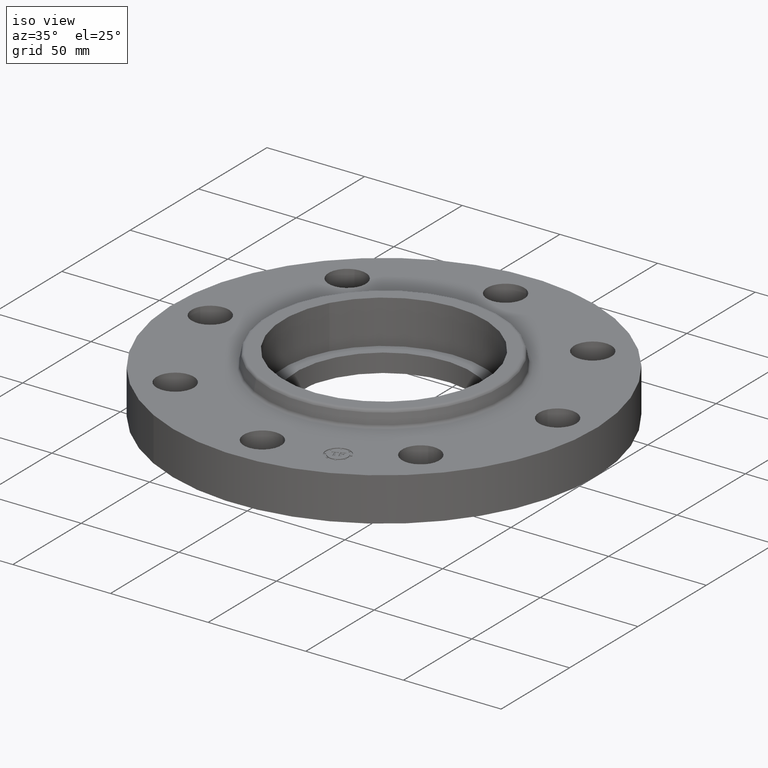
[diagram: clean part render]
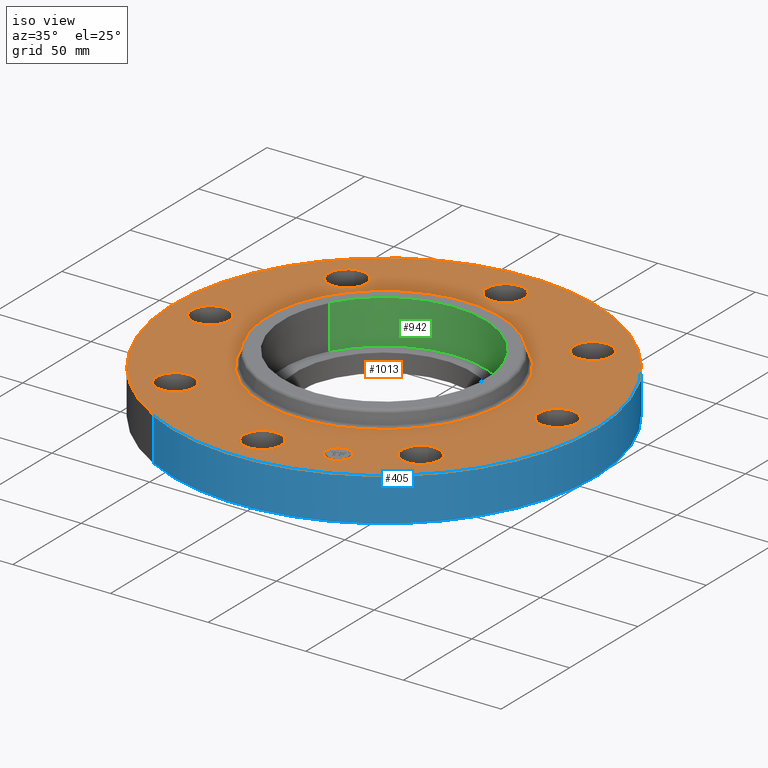
[diagram: same view with three faces highlighted in distinct colors, each labeled with its STEP entity id]
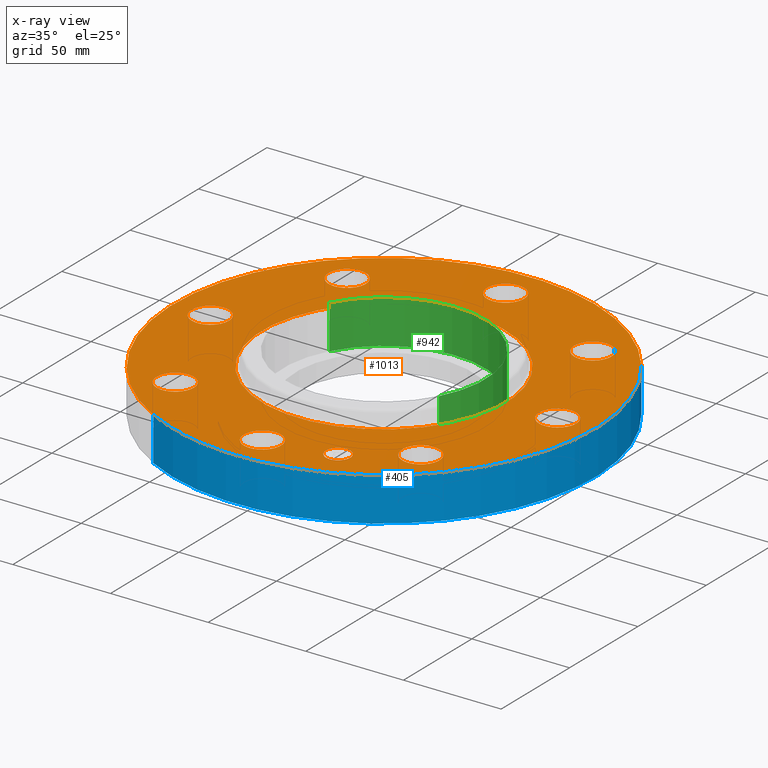
[diagram: x-ray of the same camera — body ghosted, the three highlighted faces saturated]
A machine part, iso view with three faces highlighted in distinct colors.
The next image is the same camera in x-ray (body ghosted, the three faces saturated) — at least one of them is partly hidden behind the body in this view.
Their STEP definitions:

[orange] entity #1013 — the highlighted planar face has unit normal (0, 0, -1).
#377=AXIS2_PLACEMENT_3D('Circle Axis2P3D',#375,#376,$) ;
#396=AXIS2_PLACEMENT_3D('Circle Axis2P3D',#394,#395,$) ;
#413=AXIS2_PLACEMENT_3D('Circle Axis2P3D',#411,#412,$) ;
#448=AXIS2_PLACEMENT_3D('Circle Axis2P3D',#446,#447,$) ;
#598=AXIS2_PLACEMENT_3D('Circle Axis2P3D',#596,#597,$) ;
#610=AXIS2_PLACEMENT_3D('Circle Axis2P3D',#608,#609,$) ;
#641=AXIS2_PLACEMENT_3D('Circle Axis2P3D',#639,#640,$) ;
#653=AXIS2_PLACEMENT_3D('Circle Axis2P3D',#651,#652,$) ;
#684=AXIS2_PLACEMENT_3D('Circle Axis2P3D',#682,#683,$) ;
#696=AXIS2_PLACEMENT_3D('Circle Axis2P3D',#694,#695,$) ;
#727=AXIS2_PLACEMENT_3D('Circle Axis2P3D',#725,#726,$) ;
#739=AXIS2_PLACEMENT_3D('Circle Axis2P3D',#737,#738,$) ;
#770=AXIS2_PLACEMENT_3D('Circle Axis2P3D',#768,#769,$) ;
#782=AXIS2_PLACEMENT_3D('Circle Axis2P3D',#780,#781,$) ;
#813=AXIS2_PLACEMENT_3D('Circle Axis2P3D',#811,#812,$) ;
#825=AXIS2_PLACEMENT_3D('Circle Axis2P3D',#823,#824,$) ;
#856=AXIS2_PLACEMENT_3D('Circle Axis2P3D',#854,#855,$) ;
#868=AXIS2_PLACEMENT_3D('Circle Axis2P3D',#866,#867,$) ;
#899=AXIS2_PLACEMENT_3D('Circle Axis2P3D',#897,#898,$) ;
#911=AXIS2_PLACEMENT_3D('Circle Axis2P3D',#909,#910,$) ;
#953=AXIS2_PLACEMENT_3D('Plane Axis2P3D',#950,#951,#952) ;
#997=AXIS2_PLACEMENT_3D('Circle Axis2P3D',#995,#996,$) ;
#1006=AXIS2_PLACEMENT_3D('Circle Axis2P3D',#1004,#1005,$) ;
#372=CARTESIAN_POINT('Vertex',(-2.03755853908,-3.72972588805,0.880000000004)) ;
#375=CARTESIAN_POINT('Axis2P3D Location',(0.,0.,0.880000000004)) ;
#379=CARTESIAN_POINT('Vertex',(2.03755853908,3.72972588805,0.880000000004)) ;
#394=CARTESIAN_POINT('Axis2P3D Location',(0.,0.,0.880000000004)) ;
#411=CARTESIAN_POINT('Axis2P3D Location',(0.,0.,0.880000000004)) ;
#415=CARTESIAN_POINT('Vertex',(1.1771555679,2.1547688136,0.880000000004)) ;
#417=CARTESIAN_POINT('Vertex',(-1.1771555679,-2.1547688136,0.880000000004)) ;
#446=CARTESIAN_POINT('Axis2P3D Location',(0.,0.,0.880000000004)) ;
#586=CARTESIAN_POINT('Vertex',(2.83470484541,2.58045105834,0.880000000004)) ;
#593=CARTESIAN_POINT('Vertex',(2.11504262292,2.36929640998,0.880000000004)) ;
#596=CARTESIAN_POINT('Axis2P3D Location',(2.47487373416,2.47487373416,0.880000000004)) ;
#608=CARTESIAN_POINT('Axis2P3D Location',(2.47487373416,2.47487373416,0.880000000004)) ;
#629=CARTESIAN_POINT('Vertex',(0.179784576977,3.82909346072,0.880000000004)) ;
#636=CARTESIAN_POINT('Vertex',(-0.179784576977,3.1709065393,0.880000000004)) ;
#639=CARTESIAN_POINT('Axis2P3D Location',(-6.42939569555E-016,3.50000000001,0.880000000004)) ;
#651=CARTESIAN_POINT('Axis2P3D Location',(-6.42939569555E-016,3.50000000001,0.880000000004)) ;
#672=CARTESIAN_POINT('Vertex',(-2.58045105834,2.83470484541,0.880000000004)) ;
#679=CARTESIAN_POINT('Vertex',(-2.36929640998,2.11504262292,0.880000000004)) ;
#682=CARTESIAN_POINT('Axis2P3D Location',(-2.47487373416,2.47487373416,0.880000000004)) ;
#694=CARTESIAN_POINT('Axis2P3D Location',(-2.47487373416,2.47487373416,0.880000000004)) ;
#715=CARTESIAN_POINT('Vertex',(-3.82909346072,0.179784576977,0.880000000004)) ;
#722=CARTESIAN_POINT('Vertex',(-3.1709065393,-0.179784576977,0.880000000004)) ;
#725=CARTESIAN_POINT('Axis2P3D Location',(-3.50000000001,-4.28626379703E-016,0.880000000004)) ;
#737=CARTESIAN_POINT('Axis2P3D Location',(-3.50000000001,-4.28626379703E-016,0.880000000004)) ;
#758=CARTESIAN_POINT('Vertex',(-2.83470484541,-2.58045105834,0.880000000004)) ;
#765=CARTESIAN_POINT('Vertex',(-2.11504262292,-2.36929640998,0.880000000004)) ;
#768=CARTESIAN_POINT('Axis2P3D Location',(-2.47487373416,-2.47487373416,0.880000000004)) ;
#780=CARTESIAN_POINT('Axis2P3D Location',(-2.47487373416,-2.47487373416,0.880000000004)) ;
#801=CARTESIAN_POINT('Vertex',(-0.179784576977,-3.82909346072,0.880000000004)) ;
#808=CARTESIAN_POINT('Vertex',(0.179784576977,-3.1709065393,0.880000000004)) ;
#811=CARTESIAN_POINT('Axis2P3D Location',(-3.45169279251E-016,-3.50000000001,0.880000000004)) ;
#823=CARTESIAN_POINT('Axis2P3D Location',(-3.45169279251E-016,-3.50000000001,0.880000000004)) ;
#844=CARTESIAN_POINT('Vertex',(2.58045105834,-2.83470484541,0.880000000004)) ;
#851=CARTESIAN_POINT('Vertex',(2.36929640998,-2.11504262292,0.880000000004)) ;
#854=CARTESIAN_POINT('Axis2P3D Location',(2.47487373416,-2.47487373416,0.880000000004)) ;
#866=CARTESIAN_POINT('Axis2P3D Location',(2.47487373416,-2.47487373416,0.880000000004)) ;
#887=CARTESIAN_POINT('Vertex',(3.1709065393,0.179784576977,0.880000000004)) ;
#894=CARTESIAN_POINT('Vertex',(3.82909346072,-0.179784576977,0.880000000004)) ;
#897=CARTESIAN_POINT('Axis2P3D Location',(3.50000000001,0.,0.880000000004)) ;
#909=CARTESIAN_POINT('Axis2P3D Location',(3.50000000001,0.,0.880000000004)) ;
#950=CARTESIAN_POINT('Axis2P3D Location',(0.,4.25000000002,0.880000000004)) ;
#995=CARTESIAN_POINT('Axis2P3D Location',(1.33939201328,-3.2335783638,0.880000000004)) ;
#999=CARTESIAN_POINT('Vertex',(1.56805219758,-3.13886421429,0.880000000004)) ;
#1001=CARTESIAN_POINT('Vertex',(1.11073182899,-3.32829251331,0.880000000004)) ;
#1004=CARTESIAN_POINT('Axis2P3D Location',(1.33939201328,-3.2335783638,0.880000000004)) ;
#376=DIRECTION('Axis2P3D Direction',(0.,0.,-0.0393700787402)) ;
#395=DIRECTION('Axis2P3D Direction',(0.,0.,-0.0393700787402)) ;
#412=DIRECTION('Axis2P3D Direction',(0.,0.,-0.0393700787402)) ;
#447=DIRECTION('Axis2P3D Direction',(0.,0.,-0.0393700787402)) ;
#597=DIRECTION('Axis2P3D Direction',(0.,0.,-0.0393700787402)) ;
#609=DIRECTION('Axis2P3D Direction',(0.,0.,-0.0393700787402)) ;
#640=DIRECTION('Axis2P3D Direction',(0.,0.,-0.0393700787402)) ;
#652=DIRECTION('Axis2P3D Direction',(0.,0.,-0.0393700787402)) ;
#683=DIRECTION('Axis2P3D Direction',(0.,0.,-0.0393700787402)) ;
#695=DIRECTION('Axis2P3D Direction',(0.,0.,-0.0393700787402)) ;
#726=DIRECTION('Axis2P3D Direction',(-0.,0.,-0.0393700787402)) ;
#738=DIRECTION('Axis2P3D Direction',(-0.,0.,-0.0393700787402)) ;
#769=DIRECTION('Axis2P3D Direction',(-0.,0.,-0.0393700787402)) ;
#781=DIRECTION('Axis2P3D Direction',(-0.,0.,-0.0393700787402)) ;
#812=DIRECTION('Axis2P3D Direction',(0.,-0.,-0.0393700787402)) ;
#824=DIRECTION('Axis2P3D Direction',(0.,-0.,-0.0393700787402)) ;
#855=DIRECTION('Axis2P3D Direction',(0.,-0.,-0.0393700787402)) ;
#867=DIRECTION('Axis2P3D Direction',(0.,-0.,-0.0393700787402)) ;
#898=DIRECTION('Axis2P3D Direction',(0.,-0.,-0.0393700787402)) ;
#910=DIRECTION('Axis2P3D Direction',(0.,-0.,-0.0393700787402)) ;
#951=DIRECTION('Axis2P3D Direction',(0.,0.,-0.0393700787402)) ;
#952=DIRECTION('Axis2P3D XDirection',(0.0393700787402,0.,0.)) ;
#996=DIRECTION('Axis2P3D Direction',(0.,0.,-0.0393700787402)) ;
#1005=DIRECTION('Axis2P3D Direction',(0.,0.,-0.0393700787402)) ;
#956=ORIENTED_EDGE('',*,*,#398,.F.) ;
#957=ORIENTED_EDGE('',*,*,#381,.F.) ;
#960=ORIENTED_EDGE('',*,*,#901,.T.) ;
#961=ORIENTED_EDGE('',*,*,#913,.T.) ;
#964=ORIENTED_EDGE('',*,*,#450,.T.) ;
#965=ORIENTED_EDGE('',*,*,#419,.T.) ;
#968=ORIENTED_EDGE('',*,*,#858,.T.) ;
#969=ORIENTED_EDGE('',*,*,#870,.T.) ;
#972=ORIENTED_EDGE('',*,*,#815,.T.) ;
#973=ORIENTED_EDGE('',*,*,#827,.T.) ;
#976=ORIENTED_EDGE('',*,*,#772,.T.) ;
#977=ORIENTED_EDGE('',*,*,#784,.T.) ;
#980=ORIENTED_EDGE('',*,*,#729,.T.) ;
#981=ORIENTED_EDGE('',*,*,#741,.T.) ;
#984=ORIENTED_EDGE('',*,*,#686,.T.) ;
#985=ORIENTED_EDGE('',*,*,#698,.T.) ;
#988=ORIENTED_EDGE('',*,*,#643,.T.) ;
#989=ORIENTED_EDGE('',*,*,#655,.T.) ;
#992=ORIENTED_EDGE('',*,*,#600,.T.) ;
#993=ORIENTED_EDGE('',*,*,#612,.T.) ;
#1010=ORIENTED_EDGE('',*,*,#1003,.T.) ;
#1011=ORIENTED_EDGE('',*,*,#1008,.T.) ;
#962=FACE_BOUND('',#959,.T.) ;
#966=FACE_BOUND('',#963,.T.) ;
#970=FACE_BOUND('',#967,.T.) ;
#974=FACE_BOUND('',#971,.T.) ;
#978=FACE_BOUND('',#975,.T.) ;
#982=FACE_BOUND('',#979,.T.) ;
#986=FACE_BOUND('',#983,.T.) ;
#990=FACE_BOUND('',#987,.T.) ;
#994=FACE_BOUND('',#991,.T.) ;
#1012=FACE_BOUND('',#1009,.T.) ;
#1013=ADVANCED_FACE('PartBody',(#958,#962,#966,#970,#974,#978,#982,#986,#990,#994,#1012),#954,.F.) ;
#378=CIRCLE('generated circle',#377,4.25000000002) ;
#397=CIRCLE('generated circle',#396,4.25000000002) ;
#414=CIRCLE('generated circle',#413,2.45534597788) ;
#449=CIRCLE('generated circle',#448,2.45534597788) ;
#599=CIRCLE('generated circle',#598,0.375000000002) ;
#611=CIRCLE('generated circle',#610,0.375000000002) ;
#642=CIRCLE('generated circle',#641,0.375000000002) ;
#654=CIRCLE('generated circle',#653,0.375000000002) ;
#685=CIRCLE('generated circle',#684,0.375000000002) ;
#697=CIRCLE('generated circle',#696,0.375000000002) ;
#728=CIRCLE('generated circle',#727,0.375000000001) ;
#740=CIRCLE('generated circle',#739,0.375000000001) ;
#771=CIRCLE('generated circle',#770,0.375000000002) ;
#783=CIRCLE('generated circle',#782,0.375000000002) ;
#814=CIRCLE('generated circle',#813,0.375000000002) ;
#826=CIRCLE('generated circle',#825,0.375000000002) ;
#857=CIRCLE('generated circle',#856,0.375000000002) ;
#869=CIRCLE('generated circle',#868,0.375000000002) ;
#900=CIRCLE('generated circle',#899,0.375000000002) ;
#912=CIRCLE('generated circle',#911,0.375000000002) ;
#998=CIRCLE('generated circle',#997,0.247500000001) ;
#1007=CIRCLE('generated circle',#1006,0.247500000001) ;
#381=EDGE_CURVE('',#373,#380,#378,.T.) ;
#398=EDGE_CURVE('',#380,#373,#397,.T.) ;
#419=EDGE_CURVE('',#416,#418,#414,.T.) ;
#450=EDGE_CURVE('',#418,#416,#449,.T.) ;
#600=EDGE_CURVE('',#587,#594,#599,.T.) ;
#612=EDGE_CURVE('',#594,#587,#611,.T.) ;
#643=EDGE_CURVE('',#630,#637,#642,.T.) ;
#655=EDGE_CURVE('',#637,#630,#654,.T.) ;
#686=EDGE_CURVE('',#673,#680,#685,.T.) ;
#698=EDGE_CURVE('',#680,#673,#697,.T.) ;
#729=EDGE_CURVE('',#716,#723,#728,.T.) ;
#741=EDGE_CURVE('',#723,#716,#740,.T.) ;
#772=EDGE_CURVE('',#759,#766,#771,.T.) ;
#784=EDGE_CURVE('',#766,#759,#783,.T.) ;
#815=EDGE_CURVE('',#802,#809,#814,.T.) ;
#827=EDGE_CURVE('',#809,#802,#826,.T.) ;
#858=EDGE_CURVE('',#845,#852,#857,.T.) ;
#870=EDGE_CURVE('',#852,#845,#869,.T.) ;
#901=EDGE_CURVE('',#888,#895,#900,.T.) ;
#913=EDGE_CURVE('',#895,#888,#912,.T.) ;
#1003=EDGE_CURVE('',#1000,#1002,#998,.T.) ;
#1008=EDGE_CURVE('',#1002,#1000,#1007,.T.) ;
#955=EDGE_LOOP('',(#956,#957)) ;
#959=EDGE_LOOP('',(#960,#961)) ;
#963=EDGE_LOOP('',(#964,#965)) ;
#967=EDGE_LOOP('',(#968,#969)) ;
#971=EDGE_LOOP('',(#972,#973)) ;
#975=EDGE_LOOP('',(#976,#977)) ;
#979=EDGE_LOOP('',(#980,#981)) ;
#983=EDGE_LOOP('',(#984,#985)) ;
#987=EDGE_LOOP('',(#988,#989)) ;
#991=EDGE_LOOP('',(#992,#993)) ;
#1009=EDGE_LOOP('',(#1010,#1011)) ;
#958=FACE_OUTER_BOUND('',#955,.T.) ;
#954=PLANE('',#953) ;
#373=VERTEX_POINT('',#372) ;
#380=VERTEX_POINT('',#379) ;
#416=VERTEX_POINT('',#415) ;
#418=VERTEX_POINT('',#417) ;
#587=VERTEX_POINT('',#586) ;
#594=VERTEX_POINT('',#593) ;
#630=VERTEX_POINT('',#629) ;
#637=VERTEX_POINT('',#636) ;
#673=VERTEX_POINT('',#672) ;
#680=VERTEX_POINT('',#679) ;
#716=VERTEX_POINT('',#715) ;
#723=VERTEX_POINT('',#722) ;
#759=VERTEX_POINT('',#758) ;
#766=VERTEX_POINT('',#765) ;
#802=VERTEX_POINT('',#801) ;
#809=VERTEX_POINT('',#808) ;
#845=VERTEX_POINT('',#844) ;
#852=VERTEX_POINT('',#851) ;
#888=VERTEX_POINT('',#887) ;
#895=VERTEX_POINT('',#894) ;
#1000=VERTEX_POINT('',#999) ;
#1002=VERTEX_POINT('',#1001) ;

[blue] entity #405 — the highlighted cylindrical surface (partial cylindrical patch) has radius 107.95 mm, axis along (0, 0, -1).
#207=AXIS2_PLACEMENT_3D('Circle Axis2P3D',#205,#206,$) ;
#366=AXIS2_PLACEMENT_3D('Cylinder Axis2P3D',#363,#364,#365) ;
#396=AXIS2_PLACEMENT_3D('Circle Axis2P3D',#394,#395,$) ;
#200=CARTESIAN_POINT('Vertex',(-2.03755853908,-3.72972588805,5.59482469102E-016)) ;
#202=CARTESIAN_POINT('Vertex',(2.03755853908,3.72972588805,5.59482469102E-016)) ;
#205=CARTESIAN_POINT('Axis2P3D Location',(0.,0.,0.)) ;
#363=CARTESIAN_POINT('Axis2P3D Location',(0.,0.,0.563750000002)) ;
#368=CARTESIAN_POINT('Line Origine',(-2.03755853908,-3.72972588805,0.440000000002)) ;
#372=CARTESIAN_POINT('Vertex',(-2.03755853908,-3.72972588805,0.880000000004)) ;
#379=CARTESIAN_POINT('Vertex',(2.03755853908,3.72972588805,0.880000000004)) ;
#382=CARTESIAN_POINT('Line Origine',(2.03755853908,3.72972588805,0.440000000002)) ;
#394=CARTESIAN_POINT('Axis2P3D Location',(0.,0.,0.880000000004)) ;
#206=DIRECTION('Axis2P3D Direction',(0.,0.,-0.0393700787402)) ;
#364=DIRECTION('Axis2P3D Direction',(0.,0.,-0.0393700787402)) ;
#365=DIRECTION('Axis2P3D XDirection',(0.0188750212049,0.0345504945626,0.)) ;
#369=DIRECTION('Vector Direction',(0.,0.,-0.0393700787402)) ;
#383=DIRECTION('Vector Direction',(0.,0.,-0.0393700787402)) ;
#395=DIRECTION('Axis2P3D Direction',(0.,0.,-0.0393700787402)) ;
#370=VECTOR('Line Direction',#369,0.0393700787402) ;
#384=VECTOR('Line Direction',#383,0.0393700787402) ;
#400=ORIENTED_EDGE('',*,*,#209,.F.) ;
#401=ORIENTED_EDGE('',*,*,#386,.T.) ;
#402=ORIENTED_EDGE('',*,*,#398,.T.) ;
#403=ORIENTED_EDGE('',*,*,#374,.F.) ;
#405=ADVANCED_FACE('PartBody',(#404),#367,.T.) ;
#208=CIRCLE('generated circle',#207,4.25000000002) ;
#397=CIRCLE('generated circle',#396,4.25000000002) ;
#367=CYLINDRICAL_SURFACE('generated cylinder',#366,4.25000000002) ;
#209=EDGE_CURVE('',#203,#201,#208,.T.) ;
#374=EDGE_CURVE('',#201,#373,#371,.F.) ;
#386=EDGE_CURVE('',#203,#380,#385,.F.) ;
#398=EDGE_CURVE('',#380,#373,#397,.T.) ;
#399=EDGE_LOOP('',(#400,#401,#402,#403)) ;
#404=FACE_OUTER_BOUND('',#399,.T.) ;
#371=LINE('Line',#368,#370) ;
#385=LINE('Line',#382,#384) ;
#201=VERTEX_POINT('',#200) ;
#203=VERTEX_POINT('',#202) ;
#373=VERTEX_POINT('',#372) ;
#380=VERTEX_POINT('',#379) ;

[green] entity #942 — the highlighted cylindrical surface (partial cylindrical patch) has radius 51.689 mm, axis along (0, 0, -1).
#42=AXIS2_PLACEMENT_3D('Circle Axis2P3D',#40,#41,$) ;
#560=AXIS2_PLACEMENT_3D('Circle Axis2P3D',#558,#559,$) ;
#924=AXIS2_PLACEMENT_3D('Cylinder Axis2P3D',#921,#922,#923) ;
#40=CARTESIAN_POINT('Axis2P3D Location',(1.39870617276E-016,1.04902962957E-016,0.310000000001)) ;
#44=CARTESIAN_POINT('Vertex',(-1.78588051345,0.975630971063,0.310000000001)) ;
#46=CARTESIAN_POINT('Vertex',(1.78588051345,-0.975630971063,0.310000000001)) ;
#558=CARTESIAN_POINT('Axis2P3D Location',(-1.39870617276E-016,0.,1.19)) ;
#562=CARTESIAN_POINT('Vertex',(-1.78588051345,0.975630971063,1.19)) ;
#564=CARTESIAN_POINT('Vertex',(1.78588051345,-0.975630971063,1.19)) ;
#921=CARTESIAN_POINT('Axis2P3D Location',(1.39870617276E-016,1.04902962957E-016,1.18606299213)) ;
#926=CARTESIAN_POINT('Line Origine',(-1.78588051345,0.975630971063,0.750000000003)) ;
#931=CARTESIAN_POINT('Line Origine',(1.78588051345,-0.975630971063,0.750000000003)) ;
#41=DIRECTION('Axis2P3D Direction',(0.,0.,-0.0393700787402)) ;
#559=DIRECTION('Axis2P3D Direction',(0.,0.,-0.0393700787402)) ;
#922=DIRECTION('Axis2P3D Direction',(0.,0.,-0.0393700787402)) ;
#923=DIRECTION('Axis2P3D XDirection',(0.0345504945626,-0.0188750212049,0.)) ;
#927=DIRECTION('Vector Direction',(0.,0.,-0.0393700787402)) ;
#932=DIRECTION('Vector Direction',(0.,0.,-0.0393700787402)) ;
#928=VECTOR('Line Direction',#927,0.0393700787402) ;
#933=VECTOR('Line Direction',#932,0.0393700787402) ;
#937=ORIENTED_EDGE('',*,*,#566,.F.) ;
#938=ORIENTED_EDGE('',*,*,#930,.F.) ;
#939=ORIENTED_EDGE('',*,*,#48,.T.) ;
#940=ORIENTED_EDGE('',*,*,#935,.T.) ;
#942=ADVANCED_FACE('PartBody',(#941),#925,.F.) ;
#43=CIRCLE('generated circle',#42,2.03500000001) ;
#561=CIRCLE('generated circle',#560,2.03500000001) ;
#925=CYLINDRICAL_SURFACE('generated cylinder',#924,2.03500000001) ;
#48=EDGE_CURVE('',#45,#47,#43,.T.) ;
#566=EDGE_CURVE('',#563,#565,#561,.T.) ;
#930=EDGE_CURVE('',#45,#563,#929,.F.) ;
#935=EDGE_CURVE('',#47,#565,#934,.F.) ;
#936=EDGE_LOOP('',(#937,#938,#939,#940)) ;
#941=FACE_OUTER_BOUND('',#936,.T.) ;
#929=LINE('Line',#926,#928) ;
#934=LINE('Line',#931,#933) ;
#45=VERTEX_POINT('',#44) ;
#47=VERTEX_POINT('',#46) ;
#563=VERTEX_POINT('',#562) ;
#565=VERTEX_POINT('',#564) ;